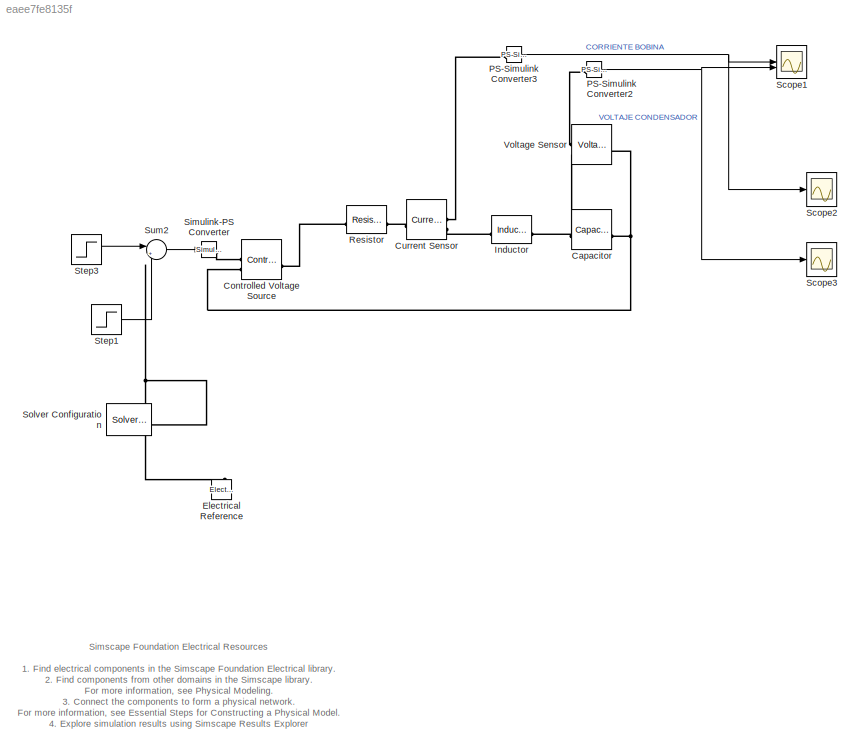
MODEL slx_eaee7fe8135f
KIND model
CONFIG AbsTol = 1e-3
CONFIG EnableMultiTasking = off
CONFIG FixedStep = auto
CONFIG MaxStep = auto
CONFIG MinStep = auto
CONFIG RelTol = 1e-3
CONFIG SampleTimeConstraint = Unconstrained
CONFIG SolverName = VariableStepAuto
CONFIG StartTime = 0.0
CONFIG StopTime = 0.7
BLOCK [Reference] Capacitor  REF=ee_lib/Passive/Capacitor
  SourceBlock = ee_lib/Passive/Capacitor
  SourceType = Capacitor
BLOCK [Reference] Controlled Voltage Source  REF=fl_lib/Electrical/Electrical Sources/Controlled Voltage
Source
  SourceBlock = fl_lib/Electrical/Electrical Sources/Controlled Voltage\nSource
  SourceType = Controlled Voltage\nSource
BLOCK [Reference] Current Sensor  REF=fl_lib/Electrical/Electrical Sensors/Current Sensor
  SourceBlock = fl_lib/Electrical/Electrical Sensors/Current Sensor
  SourceType = Current Sensor
BLOCK [Reference] Electrical Reference  REF=fl_lib/Electrical/Electrical Elements/Electrical Reference
  SourceBlock = fl_lib/Electrical/Electrical Elements/Electrical Reference
  SourceType = Electrical Reference
BLOCK [Reference] Inductor  REF=ee_lib/Passive/Inductor
  SourceBlock = ee_lib/Passive/Inductor
  SourceType = Inductor
BLOCK [Reference] PS-Simulink Converter2  REF=nesl_utility/PS-Simulink
Converter
  SourceBlock = nesl_utility/PS-Simulink\nConverter
  SourceType = PS-Simulink\nConverter
BLOCK [Reference] PS-Simulink Converter3  REF=nesl_utility/PS-Simulink
Converter
  SourceBlock = nesl_utility/PS-Simulink\nConverter
  SourceType = PS-Simulink\nConverter
BLOCK [Reference] Resistor  REF=ee_lib/Passive/Resistor
  SourceBlock = ee_lib/Passive/Resistor
  SourceType = Resistor
BLOCK [Scope] Scope1
  ActiveDisplayString = 2
  ActiveDisplayYMaximum = 4.6143115598162163
  ActiveDisplayYMinimum = -9.4720242424288212
  AxesScaling = Auto
  DataLoggingVariableName = ScopeData1
  Floating = off
  GraphicalSettings = {"Style":{"BackgroundColor":[0.12941176470588237,0.12941176470588237,0.12941176470588237],"AxesColor":[0.07058823529411765,0.07058823529411765,0.07058823529411765],"LabelsColor":[0.8509803921568627,0.8509803921568627,0.8509803921568627],"PreserveColors":false,"Visible":[true,true],"LineStyle":["-","-"],"LineWidth":[1.5,1.5],"BarWidth":[0.9,0.9],"LineColor":["auto","auto"],"LineFaceAlpha":[1,1],"Li...<+2471ch>
  LayoutDimensionsString = [2, 1]
  MaximizeAxes = On
  MultipleDisplayCache = [{"MaxYLimMag":0.956186487838735,"MaxYLimReal":0.956186487838735,"MinYLimMag":0,"MinYLimReal":-0.92884035268983889,"PlotAsMagnitudePhase":false,"ShowGrid":true,"ShowLegend":true,"Title":"CORRIENTE BOBINA","YLabel":""},{"MaxYLimMag":9.4720242424288212,"MaxYLimReal":4.6143115598162163,"MinYLimMag":0,"MinYLimReal":-9.4720242424288212,"PlotAsMagnitudePhase":false,"ShowGrid":true,"ShowLegend":true,"Tit...<+39ch>
  NumInputPorts = 2
  ScopeFrameLocation = window
  ShowLegend = on
  Title = VOLTAJE CONDENSADOR
  WasSavedAsWebScope = on
  WindowPosition = [1.000000,1.000000,1440.000000,847.000000,]
BLOCK [Scope] Scope2
  ActiveDisplayYMaximum = -0.004506669724683653
  ActiveDisplayYMinimum = -0.026648049960338815
  Floating = off
  GraphicalSettings = {"Style":{"BackgroundColor":[0.12941176470588237,0.12941176470588237,0.12941176470588237],"AxesColor":[0.07058823529411765,0.07058823529411765,0.07058823529411765],"LabelsColor":[0.8509803921568627,0.8509803921568627,0.8509803921568627],"PreserveColors":false,"Visible":[false],"LineStyle":["-"],"LineWidth":[1.5],"BarWidth":[0.9],"LineColor":["auto"],"LineFaceAlpha":[1],"LineEdgeAlpha":[1],"Marker"...<+1998ch>
  MaximizeAxes = On
  MultipleDisplayCache = [{"MaxYLimMag":10,"MaxYLimReal":-0.004506669724683653,"MinYLimMag":0,"MinYLimReal":-0.026648049960338815,"PlotAsMagnitudePhase":false,"ShowGrid":true,"ShowLegend":true,"Title":"CORRIENTE BOBINA","YLabel":""}]
  NumInputPorts = 1
  ScopeFrameLocation = window
  ShowLegend = on
  Title = CORRIENTE BOBINA
  WasSavedAsWebScope = on
  WindowPosition = [2.000000,1.000000,1440.000000,847.000000,]
BLOCK [Scope] Scope3
  ActiveDisplayYMaximum = 0.956186487838735
  ActiveDisplayYMinimum = -0.92884035268983889
  AxesScaling = Auto
  DataLoggingVariableName = ScopeData2
  Floating = off
  GraphicalSettings = {"Style":{"BackgroundColor":[0.12941176470588237,0.12941176470588237,0.12941176470588237],"AxesColor":[0.07058823529411765,0.07058823529411765,0.07058823529411765],"LabelsColor":[0.8509803921568627,0.8509803921568627,0.8509803921568627],"PreserveColors":false,"Visible":[true,true,true,true,true,true,true],"LineStyle":["-","-","-","-","-","-","-"],"LineWidth":[1.5,1.5,1.5,1.5,1.5,1.5,1.5],"BarWidth...<+2565ch>
  MaximizeAxes = On
  MultipleDisplayCache = [{"MaxYLimMag":10,"MaxYLimReal":0.956186487838735,"MinYLimMag":0,"MinYLimReal":-0.92884035268983889,"PlotAsMagnitudePhase":false,"ShowGrid":true,"ShowLegend":true,"Title":"CORRIENTE BOBINA","YLabel":""}]
  NumInputPorts = 1
  ScopeFrameLocation = window
  ShowLegend = on
  Title = CORRIENTE BOBINA
  WasSavedAsWebScope = on
  WindowPosition = [1.000000,1.000000,1440.000000,847.000000,]
BLOCK [Reference] Simulink-PS Converter  REF=nesl_utility/Simulink-PS
Converter
  SourceBlock = nesl_utility/Simulink-PS\nConverter
  SourceType = Simulink-PS\nConverter
BLOCK [Reference] Solver Configuration  REF=nesl_utility/Solver
Configuration
  SourceBlock = nesl_utility/Solver\nConfiguration
  SourceType = Solver\nConfiguration
BLOCK [Step] Step1
  After = -5
  SampleTime = 0
  Time = 0.5
BLOCK [Step] Step3
  After = 5
  SampleTime = 0
  Time = 0.2
BLOCK [Sum] Sum2
  Inputs = |++
BLOCK [Reference] Voltage Sensor  REF=fl_lib/Electrical/Electrical Sensors/Voltage Sensor
  SourceBlock = fl_lib/Electrical/Electrical Sensors/Voltage Sensor
  SourceType = Voltage Sensor
ANNOTATION (root): 1. Find electrical components in the Simscape Foundation Electrical library . 2. Find components from other domains in the Simscape library . For more information, see Physical Modeling . 3. Connect the components to form a physical network. For more information, see Essential Steps for Constructing a Physical Model . 4. Explore simulation results using Simscape Results Explorer
ANNOTATION (root): Simscape Foundation Electrical Resources
NET PS-Simulink Converter2:1 -> Scope1:2, Scope3:1
NET PS-Simulink Converter3:1 -> Scope1:1, Scope2:1
LINE Step1:1 -> Sum2:2
LINE Step3:1 -> Sum2:1
LINE Sum2:1 -> Simulink-PS Converter:1
PNET net1: Capacitor:LConn1 -- Inductor:RConn1 -- Voltage Sensor:RConn2
PNET net2: Capacitor:RConn1 -- Controlled Voltage Source:RConn2 -- Electrical Reference:LConn1 -- Solver Configuration:RConn1 -- Voltage Sensor:LConn1
PLINE Controlled Voltage Source:LConn1 -- Resistor:LConn1
PLINE Controlled Voltage Source:RConn1 -- Simulink-PS Converter:RConn1
PLINE Current Sensor:LConn1 -- Resistor:RConn1
PLINE Current Sensor:RConn1 -- PS-Simulink Converter3:LConn1
PLINE Current Sensor:RConn2 -- Inductor:LConn1
PLINE PS-Simulink Converter2:LConn1 -- Voltage Sensor:RConn1
note: NET lines group one-source signal fan-out (src -> all destinations, sorted); 1:1 wires keep LINE; PNET lines group multi-terminal physical nets as a canonical sorted terminal list (undirected conserving connections); 2-terminal nets keep the pairwise PLINE form
